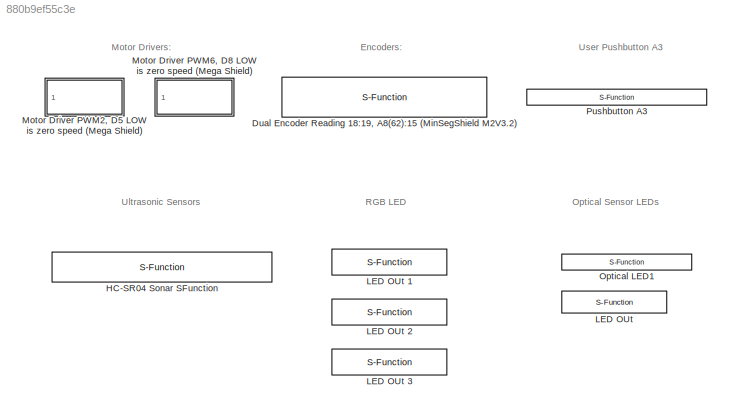
MODEL slx_880b9ef55c3e
KIND library
CONFIG AbsTol = auto
CONFIG FixedStep = auto
CONFIG MaxStep = auto
CONFIG MinStep = auto
CONFIG RelTol = 1e-3
CONFIG SampleTimeConstraint = Unconstrained
CONFIG Solver = ode45
CONFIG SolverMode = Auto
CONFIG SolverName = ode45
CONFIG StartTime = 0.0
CONFIG StopTime = 10.0
BLOCK [S-Function] Dual Encoder Reading 18:19, A8(62):15 (MinSegShield M2V3.2) 
  CopyFcn = set_param(gcbh,'LinkStatus','none')
  FunctionName = sf_QuadEncoder_18_19_15_62
  InitFcn = try, set_param(gcb,'FunctionName','sf_QuadEncoder_18_19_15_62'), end
  OpenFcn = sfunctionwizard(gcbh)
  Parameters = uint8([0 1]),uint8([18 62]),uint8([19 15])
  Ports = [0, 2]
  PreSaveFcn = try, set_param(gcb,'FunctionName','sf_QuadEncoder_18_19_15_62'), end
  SFunctionModules = sf_QuadEncoder_18_19_15_62_wrapper
BLOCK [S-Function] HC-SR04 Sonar SFunction
  CopyFcn = set_param(gcbh,'LinkStatus','none')
  FunctionName = sf_HCSR04_12_11
  InitFcn = try, set_param(gcb,'FunctionName','sf_HCSR04_12_11'), end
  OpenFcn = sfunctionwizard(gcbh)
  Ports = [0, 1]
  PreSaveFcn = try, set_param(gcb,'FunctionName','sf_HCSR04_12_11'), end
  SFunctionModules = sf_HCSR04_12_11_wrapper
BLOCK [S-Function] LED OUt 
  CopyFcn = set_param(gcbh,'LinkStatus','none')
  FunctionName = sfcn_A11_out
  InitFcn = try, set_param(gcb,'FunctionName','sfcn_A11_out'), end
  OpenFcn = sfunctionwizard(gcbh)
  Parameters = uint8(12)
  Ports = [1]
  PreSaveFcn = try, set_param(gcb,'FunctionName','sfcn_A11_out'), end
  SFunctionModules = sfcn_A11_out_wrapper
BLOCK [S-Function] LED OUt 1
  CopyFcn = set_param(gcbh,'LinkStatus','none')
  FunctionName = sfcn_A4_out
  InitFcn = try, set_param(gcb,'FunctionName','sfcn_A4_out'), end
  OpenFcn = sfunctionwizard(gcbh)
  Parameters = uint8(12)
  Ports = [1]
  PreSaveFcn = try, set_param(gcb,'FunctionName','sfcn_A4_out'), end
  SFunctionModules = sfcn_A4_out_wrapper
BLOCK [S-Function] LED OUt 2
  CopyFcn = set_param(gcbh,'LinkStatus','none')
  FunctionName = sfcn_A5_out
  InitFcn = try, set_param(gcb,'FunctionName','sfcn_A5_out'), end
  OpenFcn = sfunctionwizard(gcbh)
  Parameters = uint8(12)
  Ports = [1]
  PreSaveFcn = try, set_param(gcb,'FunctionName','sfcn_A5_out'), end
  SFunctionModules = sfcn_A5_out_wrapper
BLOCK [S-Function] LED OUt 3
  CopyFcn = set_param(gcbh,'LinkStatus','none')
  FunctionName = sfcn_A7_out
  InitFcn = try, set_param(gcb,'FunctionName','sfcn_A7_out'), end
  OpenFcn = sfunctionwizard(gcbh)
  Parameters = uint8(12)
  Ports = [1]
  PreSaveFcn = try, set_param(gcb,'FunctionName','sfcn_A7_out'), end
  SFunctionModules = sfcn_A7_out_wrapper
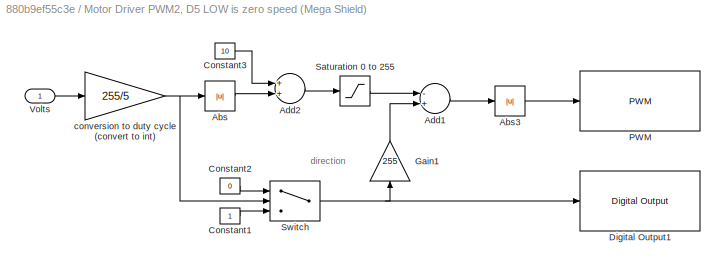
BLOCK [SubSystem] Motor Driver PWM2, D5 LOW is zero speed (Mega Shield)
  Ports = [1]
  RequestExecContextInheritance = off
BLOCK [Abs] Motor Driver PWM2, D5 LOW is zero speed (Mega Shield)/Abs
  SaturateOnIntegerOverflow = off
BLOCK [Abs] Motor Driver PWM2, D5 LOW is zero speed (Mega Shield)/Abs3
  SaturateOnIntegerOverflow = off
BLOCK [Sum] Motor Driver PWM2, D5 LOW is zero speed (Mega Shield)/Add1
  InputSameDT = off
  Inputs = -+
  OutDataTypeStr = Inherit: Inherit via internal rule
  Ports = [2, 1]
  SaturateOnIntegerOverflow = off
BLOCK [Sum] Motor Driver PWM2, D5 LOW is zero speed (Mega Shield)/Add2
  InputSameDT = off
  OutDataTypeStr = Inherit: Inherit via internal rule
  Ports = [2, 1]
  SaturateOnIntegerOverflow = off
BLOCK [Constant] Motor Driver PWM2, D5 LOW is zero speed (Mega Shield)/Constant1
BLOCK [Constant] Motor Driver PWM2, D5 LOW is zero speed (Mega Shield)/Constant2
  Value = 0
BLOCK [Constant] Motor Driver PWM2, D5 LOW is zero speed (Mega Shield)/Constant3
  Value = 10
BLOCK [Reference] Motor Driver PWM2, D5 LOW is zero speed (Mega Shield)/Digital Output1  REF=arduinolib/Digital Output
  Ports = [1]
  SourceBlock = arduinolib/Digital Output
  SourceType = Arduino Digital Output
  pinNumber = 5
BLOCK [Gain] Motor Driver PWM2, D5 LOW is zero speed (Mega Shield)/Gain1
  Gain = 255
  OutDataTypeStr = Inherit: Inherit via internal rule
  ParamDataTypeStr = Inherit: Inherit via internal rule
  SaturateOnIntegerOverflow = off
BLOCK [Reference] Motor Driver PWM2, D5 LOW is zero speed (Mega Shield)/PWM  REF=arduinolib/PWM
  Ports = [1]
  SourceBlock = arduinolib/PWM
  SourceType = Arduino PWM
  pinNumber = 2
BLOCK [Saturate] Motor Driver PWM2, D5 LOW is zero speed (Mega Shield)/Saturation 0 to 255
  InputPortMap = u0
  LowerLimit = 0
  Ports = [1, 1]
  UpperLimit = 255
BLOCK [Switch] Motor Driver PWM2, D5 LOW is zero speed (Mega Shield)/Switch
  InputSameDT = off
  SaturateOnIntegerOverflow = off
BLOCK [Inport] Motor Driver PWM2, D5 LOW is zero speed (Mega Shield)/Volts
  IconDisplay = Port number
BLOCK [Gain] Motor Driver PWM2, D5 LOW is zero speed (Mega Shield)/conversion to duty cycle (convert to int)
  Gain = 255/5
  OutDataTypeStr = int16
  ParamDataTypeStr = Inherit: Inherit via internal rule
  SaturateOnIntegerOverflow = off
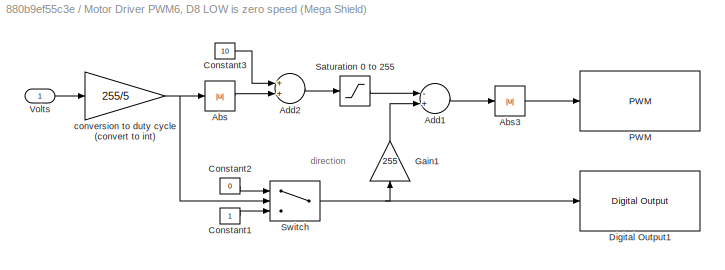
BLOCK [SubSystem] Motor Driver PWM6, D8 LOW is zero speed (Mega Shield)
  Ports = [1]
  RequestExecContextInheritance = off
BLOCK [Abs] Motor Driver PWM6, D8 LOW is zero speed (Mega Shield)/Abs
  SaturateOnIntegerOverflow = off
BLOCK [Abs] Motor Driver PWM6, D8 LOW is zero speed (Mega Shield)/Abs3
  SaturateOnIntegerOverflow = off
BLOCK [Sum] Motor Driver PWM6, D8 LOW is zero speed (Mega Shield)/Add1
  InputSameDT = off
  Inputs = -+
  OutDataTypeStr = Inherit: Inherit via internal rule
  Ports = [2, 1]
  SaturateOnIntegerOverflow = off
BLOCK [Sum] Motor Driver PWM6, D8 LOW is zero speed (Mega Shield)/Add2
  InputSameDT = off
  OutDataTypeStr = Inherit: Inherit via internal rule
  Ports = [2, 1]
  SaturateOnIntegerOverflow = off
BLOCK [Constant] Motor Driver PWM6, D8 LOW is zero speed (Mega Shield)/Constant1
BLOCK [Constant] Motor Driver PWM6, D8 LOW is zero speed (Mega Shield)/Constant2
  Value = 0
BLOCK [Constant] Motor Driver PWM6, D8 LOW is zero speed (Mega Shield)/Constant3
  Value = 10
BLOCK [Reference] Motor Driver PWM6, D8 LOW is zero speed (Mega Shield)/Digital Output1  REF=arduinolib/Digital Output
  Ports = [1]
  SourceBlock = arduinolib/Digital Output
  SourceType = Arduino Digital Output
  pinNumber = 8
BLOCK [Gain] Motor Driver PWM6, D8 LOW is zero speed (Mega Shield)/Gain1
  Gain = 255
  OutDataTypeStr = Inherit: Inherit via internal rule
  ParamDataTypeStr = Inherit: Inherit via internal rule
  SaturateOnIntegerOverflow = off
BLOCK [Reference] Motor Driver PWM6, D8 LOW is zero speed (Mega Shield)/PWM  REF=arduinolib/PWM
  Ports = [1]
  SourceBlock = arduinolib/PWM
  SourceType = Arduino PWM
  pinNumber = 6
BLOCK [Saturate] Motor Driver PWM6, D8 LOW is zero speed (Mega Shield)/Saturation 0 to 255
  InputPortMap = u0
  LowerLimit = 0
  Ports = [1, 1]
  UpperLimit = 255
BLOCK [Switch] Motor Driver PWM6, D8 LOW is zero speed (Mega Shield)/Switch
  InputSameDT = off
  SaturateOnIntegerOverflow = off
BLOCK [Inport] Motor Driver PWM6, D8 LOW is zero speed (Mega Shield)/Volts
  IconDisplay = Port number
BLOCK [Gain] Motor Driver PWM6, D8 LOW is zero speed (Mega Shield)/conversion to duty cycle (convert to int)
  Gain = 255/5
  OutDataTypeStr = int16
  ParamDataTypeStr = Inherit: Inherit via internal rule
  SaturateOnIntegerOverflow = off
BLOCK [S-Function] Optical LED1
  CopyFcn = set_param(gcbh,'LinkStatus','none')
  FunctionName = sfcn_A2_out
  InitFcn = try, set_param(gcb,'FunctionName','sfcn_A2_out'), end
  OpenFcn = sfunctionwizard(gcbh)
  Parameters = uint8(12)
  Ports = [1]
  PreSaveFcn = try, set_param(gcb,'FunctionName','sfcn_A2_out'), end
  SFunctionModules = sfcn_A2_out_wrapper
BLOCK [S-Function] Pushbutton A3
  CopyFcn = set_param(gcbh,'LinkStatus','none')
  FunctionName = sfcn_A3_IN
  InitFcn = try, set_param(gcb,'FunctionName','sfcn_A3_IN'), end
  OpenFcn = sfunctionwizard(gcbh)
  Ports = [0, 1]
  PreSaveFcn = try, set_param(gcb,'FunctionName','sfcn_A3_IN'), end
  SFunctionModules = sfcn_A3_IN_wrapper
ANNOTATION (root): Encoders:
ANNOTATION (root): Motor Drivers:
ANNOTATION (root): Optical Sensor LEDs
ANNOTATION (root): RGB LED
ANNOTATION (root): Ultrasonic Sensors
ANNOTATION (root): User Pushbutton A3
ANNOTATION Motor Driver PWM2, D5 LOW is zero speed (Mega Shield): direction
ANNOTATION Motor Driver PWM6, D8 LOW is zero speed (Mega Shield): direction
LINE Motor Driver PWM2, D5 LOW is zero speed (Mega Shield)/Abs3:1 -> Motor Driver PWM2, D5 LOW is zero speed (Mega Shield)/PWM:1
LINE Motor Driver PWM2, D5 LOW is zero speed (Mega Shield)/Abs:1 -> Motor Driver PWM2, D5 LOW is zero speed (Mega Shield)/Add2:2
LINE Motor Driver PWM2, D5 LOW is zero speed (Mega Shield)/Add1:1 -> Motor Driver PWM2, D5 LOW is zero speed (Mega Shield)/Abs3:1
LINE Motor Driver PWM2, D5 LOW is zero speed (Mega Shield)/Add2:1 -> Motor Driver PWM2, D5 LOW is zero speed (Mega Shield)/Saturation 0 to 255:1
LINE Motor Driver PWM2, D5 LOW is zero speed (Mega Shield)/Constant1:1 -> Motor Driver PWM2, D5 LOW is zero speed (Mega Shield)/Switch:3
LINE Motor Driver PWM2, D5 LOW is zero speed (Mega Shield)/Constant2:1 -> Motor Driver PWM2, D5 LOW is zero speed (Mega Shield)/Switch:1
LINE Motor Driver PWM2, D5 LOW is zero speed (Mega Shield)/Constant3:1 -> Motor Driver PWM2, D5 LOW is zero speed (Mega Shield)/Add2:1
LINE Motor Driver PWM2, D5 LOW is zero speed (Mega Shield)/Gain1:1 -> Motor Driver PWM2, D5 LOW is zero speed (Mega Shield)/Add1:2
LINE Motor Driver PWM2, D5 LOW is zero speed (Mega Shield)/Saturation 0 to 255:1 -> Motor Driver PWM2, D5 LOW is zero speed (Mega Shield)/Add1:1
NET Motor Driver PWM2, D5 LOW is zero speed (Mega Shield)/Switch:1 -> Motor Driver PWM2, D5 LOW is zero speed (Mega Shield)/Digital Output1:1, Motor Driver PWM2, D5 LOW is zero speed (Mega Shield)/Gain1:1
LINE Motor Driver PWM2, D5 LOW is zero speed (Mega Shield)/Volts:1 -> Motor Driver PWM2, D5 LOW is zero speed (Mega Shield)/conversion to duty cycle (convert to int):1
NET Motor Driver PWM2, D5 LOW is zero speed (Mega Shield)/conversion to duty cycle (convert to int):1 -> Motor Driver PWM2, D5 LOW is zero speed (Mega Shield)/Abs:1, Motor Driver PWM2, D5 LOW is zero speed (Mega Shield)/Switch:2
LINE Motor Driver PWM6, D8 LOW is zero speed (Mega Shield)/Abs3:1 -> Motor Driver PWM6, D8 LOW is zero speed (Mega Shield)/PWM:1
LINE Motor Driver PWM6, D8 LOW is zero speed (Mega Shield)/Abs:1 -> Motor Driver PWM6, D8 LOW is zero speed (Mega Shield)/Add2:2
LINE Motor Driver PWM6, D8 LOW is zero speed (Mega Shield)/Add1:1 -> Motor Driver PWM6, D8 LOW is zero speed (Mega Shield)/Abs3:1
LINE Motor Driver PWM6, D8 LOW is zero speed (Mega Shield)/Add2:1 -> Motor Driver PWM6, D8 LOW is zero speed (Mega Shield)/Saturation 0 to 255:1
LINE Motor Driver PWM6, D8 LOW is zero speed (Mega Shield)/Constant1:1 -> Motor Driver PWM6, D8 LOW is zero speed (Mega Shield)/Switch:3
LINE Motor Driver PWM6, D8 LOW is zero speed (Mega Shield)/Constant2:1 -> Motor Driver PWM6, D8 LOW is zero speed (Mega Shield)/Switch:1
LINE Motor Driver PWM6, D8 LOW is zero speed (Mega Shield)/Constant3:1 -> Motor Driver PWM6, D8 LOW is zero speed (Mega Shield)/Add2:1
LINE Motor Driver PWM6, D8 LOW is zero speed (Mega Shield)/Gain1:1 -> Motor Driver PWM6, D8 LOW is zero speed (Mega Shield)/Add1:2
LINE Motor Driver PWM6, D8 LOW is zero speed (Mega Shield)/Saturation 0 to 255:1 -> Motor Driver PWM6, D8 LOW is zero speed (Mega Shield)/Add1:1
NET Motor Driver PWM6, D8 LOW is zero speed (Mega Shield)/Switch:1 -> Motor Driver PWM6, D8 LOW is zero speed (Mega Shield)/Digital Output1:1, Motor Driver PWM6, D8 LOW is zero speed (Mega Shield)/Gain1:1
LINE Motor Driver PWM6, D8 LOW is zero speed (Mega Shield)/Volts:1 -> Motor Driver PWM6, D8 LOW is zero speed (Mega Shield)/conversion to duty cycle (convert to int):1
NET Motor Driver PWM6, D8 LOW is zero speed (Mega Shield)/conversion to duty cycle (convert to int):1 -> Motor Driver PWM6, D8 LOW is zero speed (Mega Shield)/Abs:1, Motor Driver PWM6, D8 LOW is zero speed (Mega Shield)/Switch:2
note: NET lines group one-source signal fan-out (src -> all destinations, sorted); 1:1 wires keep LINE
